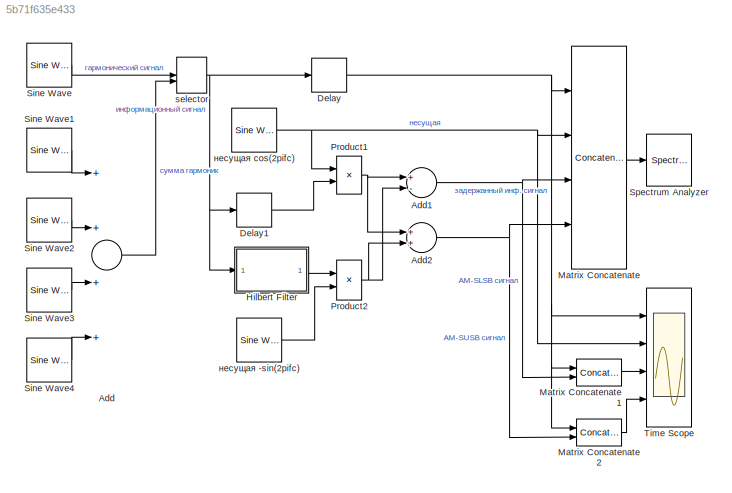
MODEL slx_5b71f635e433
KIND model
CONFIG AbsTol = auto
CONFIG EnableMultiTasking = on
CONFIG FixedStep = auto
CONFIG MaxStep = auto
CONFIG MinStep = auto
CONFIG PreLoadFcn = pr51setup;
CONFIG RelTol = 1e-3
CONFIG SampleTimeConstraint = Unconstrained
CONFIG Solver = VariableStepAuto
CONFIG SolverName = VariableStepAuto
CONFIG StartTime = 0.0
CONFIG StopTime = 100*time_span
BLOCK [Sum] Add
  InputSameDT = off
  Inputs = ++++
  OutDataTypeStr = Inherit: Inherit via internal rule
  Ports = [4, 1]
  SaturateOnIntegerOverflow = off
BLOCK [Sum] Add1
  InputSameDT = off
  Inputs = +-
  OutDataTypeStr = Inherit: Inherit via internal rule
  Ports = [2, 1]
  SaturateOnIntegerOverflow = off
BLOCK [Sum] Add2
  InputSameDT = off
  OutDataTypeStr = Inherit: Inherit via internal rule
  Ports = [2, 1]
  SaturateOnIntegerOverflow = off
BLOCK [Delay] Delay
  DelayLength = filter_order/2
  InitialCondition = 0
  InputPortMap = u0
  Ports = [1, 1]
BLOCK [Delay] Delay1
  DelayLength = filter_order/2
  InitialCondition = 0
  InputPortMap = u0
  Ports = [1, 1]
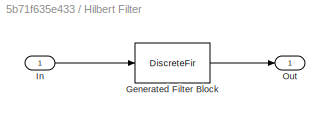
BLOCK [SubSystem] Hilbert Filter
  CopyFcn = fdesignblkfcn(gcbh, {'CopyFcn'});
  DialogController = fdesignblkfcn
  InitFcn = fdesignblkfcn(gcbh, {'InitFcn'});
  Ports = [1, 1]
  RequestExecContextInheritance = off
  UserDataPersistent = on
BLOCK [DiscreteFir] Hilbert Filter/Generated Filter Block
  Coefficients = [-1.340315280530221e-12 -0.15532194863759521 9.985909825208318e-13 -0.0012125629072069488 5.580618670101296e-14 -0.0012182496068171844 -1.7598529487556406e-14 -0.0012245344503327704 -4.5516283990885644e-14 -0.0012314293369682372 -3.0538739237332598e-14 -0.0012393260537777451 5.9098395590415978e-14 -0.0012472558880338713 -3.5026668228246942e-14 -0.0012564291405026129 5.340919020909386e-14 -0.001266...<+22415ch>
  InputPortMap = u0
  InputProcessing = Columns as channels (frame based)
  OutputPortMap = o0
  Ports = [1, 1]
  Tag = BlockMethodSubSystem
BLOCK [Inport] Hilbert Filter/In
  IconDisplay = Port number
BLOCK [Outport] Hilbert Filter/Out
  IconDisplay = Port number
BLOCK [Concatenate] Matrix Concatenate
  ConcatenateDimension = 2
  Mode = Multidimensional array
  NumInputs = 4
  Ports = [4, 1]
BLOCK [Concatenate] Matrix Concatenate1
  ConcatenateDimension = 2
  Mode = Multidimensional array
  Ports = [2, 1]
BLOCK [Concatenate] Matrix Concatenate2
  ConcatenateDimension = 2
  Mode = Multidimensional array
  Ports = [2, 1]
BLOCK [Product] Product1
  InputSameDT = off
  OutDataTypeStr = Inherit: Inherit via internal rule
  Ports = [2, 1]
  RndMeth = Floor
  SaturateOnIntegerOverflow = off
BLOCK [Product] Product2
  InputSameDT = off
  OutDataTypeStr = Inherit: Inherit via internal rule
  Ports = [2, 1]
  RndMeth = Floor
  SaturateOnIntegerOverflow = off
BLOCK [Reference] Sine Wave  REF=dspsrcs4/Sine Wave
  Ports = [0, 1]
  SourceBlock = dspsrcs4/Sine Wave
  SourceProductBaseCode = DS
  SourceProductName = DSP System Toolbox
  SourceType = Sine Wave
BLOCK [Reference] Sine Wave1  REF=dspsrcs4/Sine Wave
  Ports = [0, 1]
  SourceBlock = dspsrcs4/Sine Wave
  SourceProductBaseCode = DS
  SourceProductName = DSP System Toolbox
  SourceType = Sine Wave
BLOCK [Reference] Sine Wave2  REF=dspsrcs4/Sine Wave
  Ports = [0, 1]
  SourceBlock = dspsrcs4/Sine Wave
  SourceProductBaseCode = DS
  SourceProductName = DSP System Toolbox
  SourceType = Sine Wave
BLOCK [Reference] Sine Wave3  REF=dspsrcs4/Sine Wave
  Ports = [0, 1]
  SourceBlock = dspsrcs4/Sine Wave
  SourceProductBaseCode = DS
  SourceProductName = DSP System Toolbox
  SourceType = Sine Wave
BLOCK [Reference] Sine Wave4  REF=dspsrcs4/Sine Wave
  Ports = [0, 1]
  SourceBlock = dspsrcs4/Sine Wave
  SourceProductBaseCode = DS
  SourceProductName = DSP System Toolbox
  SourceType = Sine Wave
BLOCK [SpectrumAnalyzer] Spectrum Analyzer
  Ports = [1]
  ScopeSpecificationString = spbscopes.SpectrumAnalyzerBlockCfg('CurrentConfiguration', extmgr.ConfigurationSet(extmgr.Configuration('Core','General UI',true,'ShowMainToolbar',false,'ShowStatusbar',false,'FigureColor',[1 1 1]),extmgr.Configuration('Core','Source UI',true),extmgr.Configuration('Sources','WiredSimulink',true),extmgr.Configuration('Sources','Workspace',false),extmgr.Configuration('Sources','SimulinkEvent',false)...<+4010ch>
BLOCK [Scope] Time Scope
  DefaultConfigurationName = spbscopes.TimeScopeBlockCfg
  Floating = off
  NumInputPorts = 4
  Ports = [4]
  ScopeSpecificationString = spbscopes.TimeScopeBlockCfg('CurrentConfiguration', extmgr.ConfigurationSet(extmgr.Configuration('Core','General UI',true,'ShowMainToolbar',false,'ShowStatusbar',false,'FigureColor',[1 1 1]),extmgr.Configuration('Core','Source UI',true),extmgr.Configuration('Sources','WiredSimulink',true),extmgr.Configuration('Visuals','Time Domain',true,'DisplayLayoutDimensions',[4 1],'DisplayPropertyDefaults',st...<+4327ch>
  UserDataPersistent = on
BLOCK [ManualSwitch] selector
  CurrentSetting = 0
BLOCK [Reference] несущая -sin(2pifc)  REF=dspsrcs4/Sine Wave
  Ports = [0, 1]
  SourceBlock = dspsrcs4/Sine Wave
  SourceProductBaseCode = DS
  SourceProductName = DSP System Toolbox
  SourceType = Sine Wave
BLOCK [Reference] несущая cos(2pifc)  REF=dspsrcs4/Sine Wave
  Ports = [0, 1]
  SourceBlock = dspsrcs4/Sine Wave
  SourceProductBaseCode = DS
  SourceProductName = DSP System Toolbox
  SourceType = Sine Wave
NET Add1:1 -> Matrix Concatenate1:2, Matrix Concatenate:3
NET Add2:1 -> Matrix Concatenate2:2, Matrix Concatenate:4
LINE Add:1 -> selector:2
LINE Delay1:1 -> Product1:2
NET Delay:1 -> Matrix Concatenate1:1, Matrix Concatenate2:1, Matrix Concatenate:1, Time Scope:1
LINE Hilbert Filter:1 -> Product2:1
LINE Matrix Concatenate1:1 -> Time Scope:3
LINE Matrix Concatenate2:1 -> Time Scope:4
LINE Matrix Concatenate:1 -> Spectrum Analyzer:1
NET Product1:1 -> Add1:1, Add2:1
NET Product2:1 -> Add1:2, Add2:2
LINE Sine Wave1:1 -> Add:1
LINE Sine Wave2:1 -> Add:2
LINE Sine Wave3:1 -> Add:3
LINE Sine Wave4:1 -> Add:4
LINE Sine Wave:1 -> selector:1
NET selector:1 -> Delay1:1, Delay:1, Hilbert Filter:1
LINE несущая -sin(2pifc):1 -> Product2:2
NET несущая cos(2pifc):1 -> Matrix Concatenate:2, Product1:1, Time Scope:2
note: NET lines group one-source signal fan-out (src -> all destinations, sorted); 1:1 wires keep LINE
